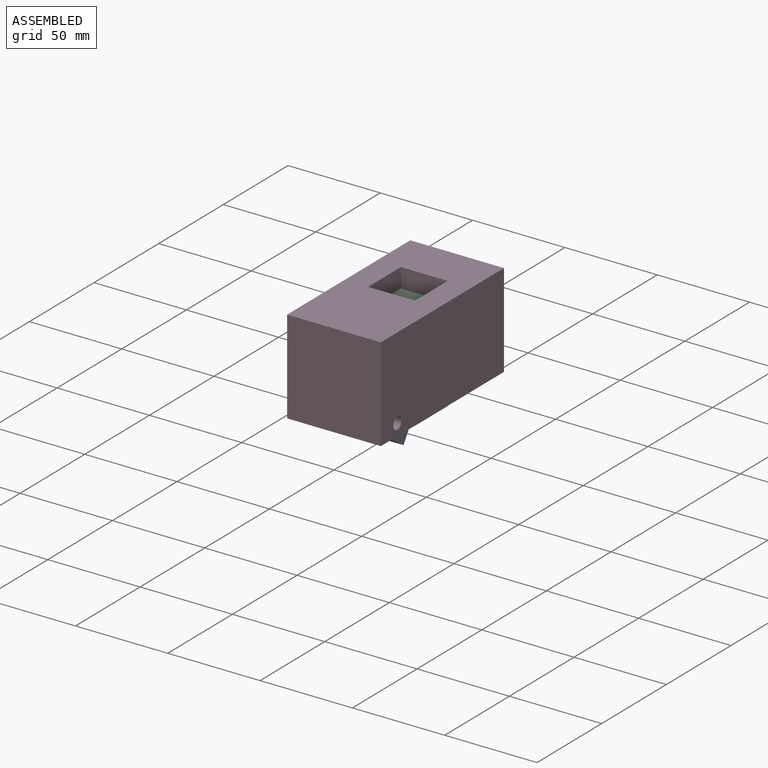
[diagram: assembled view]
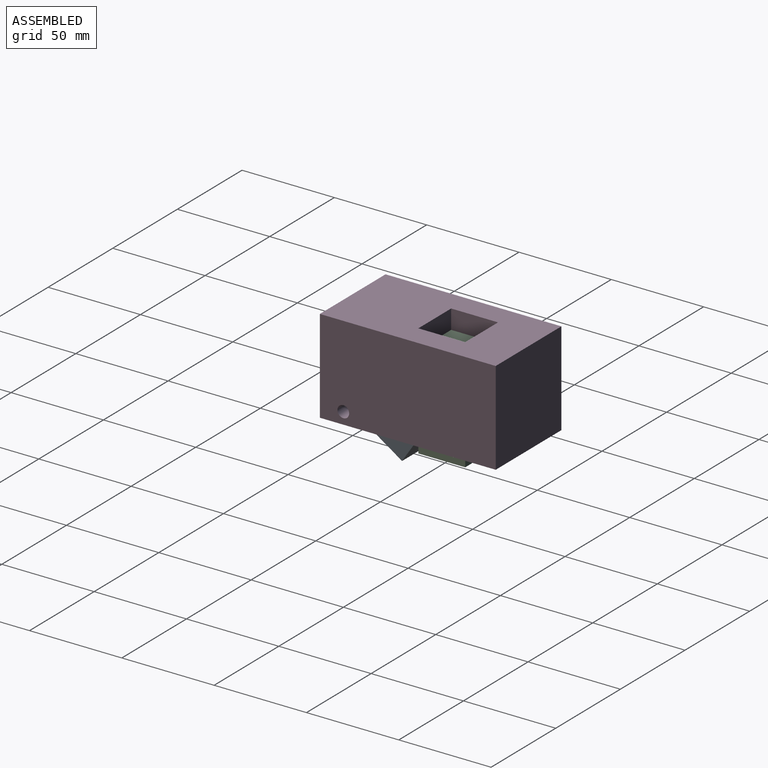
[diagram: assembled view, second angle]
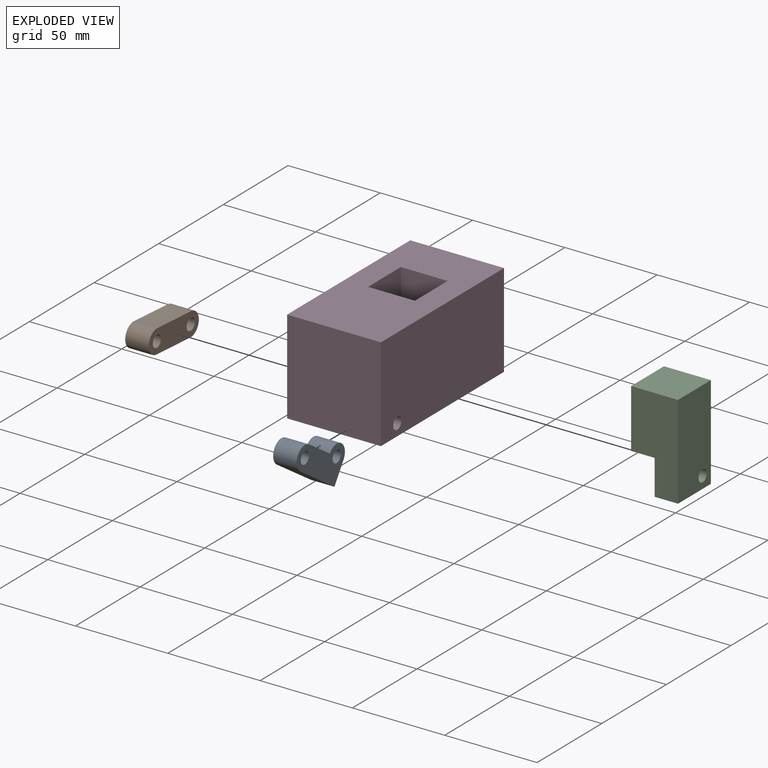
[diagram: exploded view]
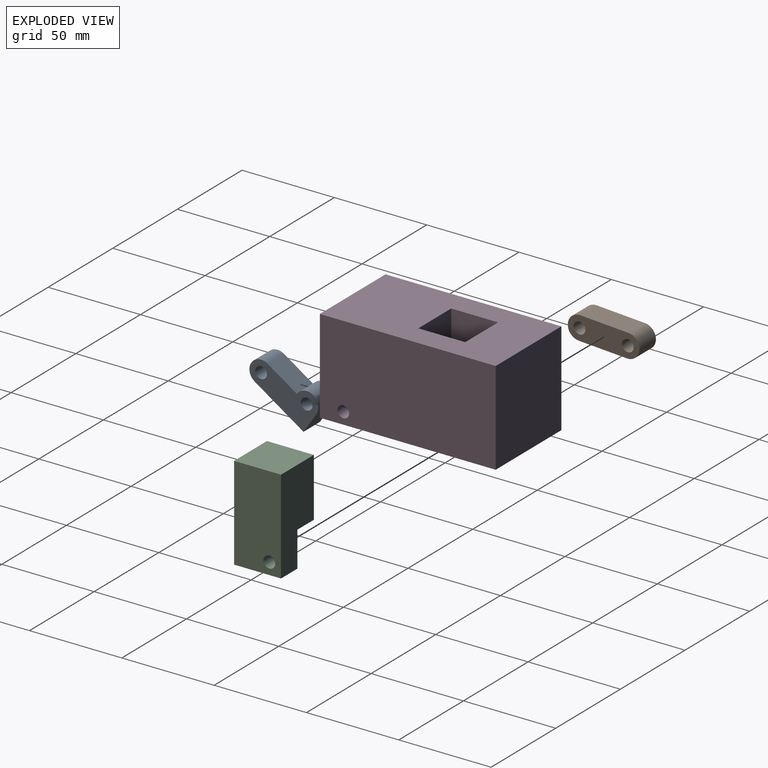
[diagram: exploded view, second angle]
ASSEMBLY  parts=4 mates=3
PART A: 9 faces, bbox 12.7x38.1x19.1 mm
  f0: plane 12.7x12.7mm, normal (0,1,0), area 161.3mm2, adj f1,f5,f7,f8
  f1: cylinder r=6.35mm len=12.7mm, axis (-1,0,0), area 253.4mm2, adj f0,f2,f7,f8
  f2: plane 19.05x12.7mm, normal (0,0,1), area 241.9mm2, adj f1,f3,f7,f8
  f3: cylinder r=6.35mm len=12.7mm, axis (-1,0,0), area 253.4mm2, adj f2,f5,f7,f8
  f4: cylinder r=3.17mm len=12.7mm, axis (-1,0,0), area 253.4mm2, adj f7,f8
  f5: plane 31.75x12.7mm, normal (0,0,-1), area 403.2mm2, adj f0,f3,f7,f8
  f6: cylinder r=3.17mm len=12.7mm, axis (-1,0,0), area 253.4mm2, adj f7,f8
  f7: plane 38.1x19.05mm, normal (1,0,0), area 466.6mm2, adj f0,f1,f2,f3,f4,f5,f6
  f8: plane 38.1x19.05mm, normal (-1,0,0), area 466.6mm2, adj f0,f1,f2,f3,f4,f5,f6
PART B: 8 faces, bbox 12.7x38.1x19.1 mm
  f0: cylinder r=6.35mm len=12.7mm, axis (1,0,0), area 253.4mm2, adj f1,f3,f6,f7
  f1: plane 25.4x12.7mm, normal (0,-0.24,-0.97), area 332.5mm2, adj f0,f2,f6,f7
  f2: cylinder r=6.35mm len=12.7mm, axis (1,0,0), area 253.4mm2, adj f1,f3,f6,f7
  f3: plane 25.4x12.7mm, normal (0,0.24,0.97), area 332.5mm2, adj f0,f2,f6,f7
  f4: cylinder r=3.17mm len=12.7mm, axis (1,0,0), area 253.4mm2, adj f6,f7
  f5: cylinder r=3.17mm len=12.7mm, axis (1,0,0), area 253.4mm2, adj f6,f7
  f6: plane 38.1x19.05mm, normal (-1,0,0), area 395.8mm2, adj f0,f1,f2,f3,f4,f5
  f7: plane 38.1x19.05mm, normal (1,0,0), area 395.8mm2, adj f0,f1,f2,f3,f4,f5
PART C: 9 faces, bbox 25.4x25.4x50.8 mm
  f0: plane 25.4x12.7mm, normal (0,0,-1), area 322.6mm2, adj f1,f3,f5,f6
  f1: plane 50.8x25.4mm, normal (0,1,0), area 1048.4mm2, adj f0,f2,f5,f6,f7,f8
  f2: plane 25.4x25.4mm, normal (0,0,1), area 645.2mm2, adj f1,f3,f5,f8
  f3: plane 50.8x25.4mm, normal (0,-1,0), area 1048.4mm2, adj f0,f2,f5,f6,f7,f8
  f4: cylinder r=3.17mm len=12.7mm, axis (-1,0,0), area 253.4mm2, adj f5,f6
  f5: plane 50.8x25.4mm, normal (1,0,0), area 1258.7mm2, adj f0,f1,f2,f3,f4
  f6: plane 25.4x19.05mm, normal (-1,0,0), area 452.2mm2, adj f0,f1,f3,f4,f7
  f7: plane 25.4x12.7mm, normal (0,0,-1), area 322.6mm2, adj f1,f3,f6,f8
  f8: plane 31.75x25.4mm, normal (-1,0,0), area 806.4mm2, adj f1,f2,f3,f7
PART D: 17 faces, bbox 50.8x95.3x50.8 mm
  f0: plane 12.7x12.7mm, normal (0,1,0), area 161.3mm2, adj f1,f6,f12,f14
  f1: plane 25.4x12.7mm, normal (0,0,-1), area 322.6mm2, adj f0,f7,f12,f14
  f2: plane 50.8x38.1mm, normal (1,0,0), area 1532.3mm2, adj f3,f4,f6,f7,f8,f9
  f3: plane 31.75x25.4mm, normal (0,1,0), area 806.5mm2, adj f2,f4,f8,f12
  f4: plane 95.25x50.8mm, normal (0,0,1), area 4193.5mm2, adj f2,f3,f5,f9,f10,f11,f12,f13
  f5: plane 50.8x50.8mm, normal (0,-1,0), area 2580.6mm2, adj f4,f6,f11,f13
  f6: plane 95.25x50.8mm, normal (0,0,-1), area 3548.4mm2, adj f0,f2,f5,f7,f9,f10,f11,f12
  f7: plane 25.4x19.05mm, normal (0,1,0), area 322.6mm2, adj f1,f2,f6,f8,f12,f14
  f8: plane 25.4x12.7mm, normal (0,0,-1), area 322.6mm2, adj f2,f3,f7,f12
  f9: plane 50.8x25.4mm, normal (0,-1,0), area 1290.3mm2, adj f2,f4,f6,f12
  f10: plane 50.8x50.8mm, normal (0,1,0), area 2580.6mm2, adj f4,f6,f11,f13
  f11: plane 95.25x50.8mm, normal (-1,0,0), area 4807mm2, adj f4,f5,f6,f10,f15
  f12: plane 63.5x50.8mm, normal (-1,0,0), area 1823.2mm2, adj f0,f1,f3,f4,f6,f7,f8,f9
  f13: plane 95.25x50.8mm, normal (1,0,0), area 4807mm2, adj f4,f5,f6,f10,f16
  f14: plane 25.4x12.7mm, normal (1,0,0), area 290.9mm2, adj f0,f1,f6,f7,f15
  f15: cylinder r=3.17mm len=25.4mm, axis (1,0,0), area 506.7mm2, adj f11,f14
  f16: cylinder r=3.17mm len=12.7mm, axis (1,0,0), area 253.4mm2, adj f12,f13
PLACE A rot(axis=(-1,0,0),33.6deg) t=(0,37.37,-27.81)mm
PLACE B rot(axis=(1,0,0),10.3deg) t=(0,37.37,-27.81)mm
PLACE C t=(0,38.1,-23.15)mm
PLACE D t=(0,38.1,-12.7)mm
MATE revolute A.f4 <-> B.f5  axis (-1,0,0) through (0,37.37,-27.81)mm
MATE revolute C.f4 <-> B.f0  axis (-1,0,0) through (0,63.5,-29.5)mm
MATE revolute A.f3 <-> D.f15  axis (1,0,0) through (12.7,12.7,-19.05)mm
